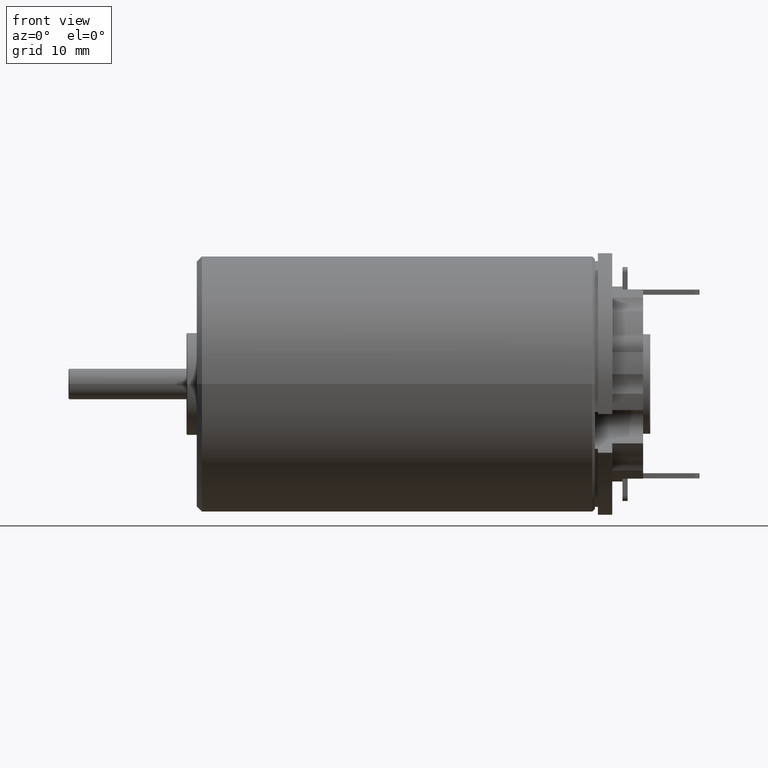
[diagram: clean part render]
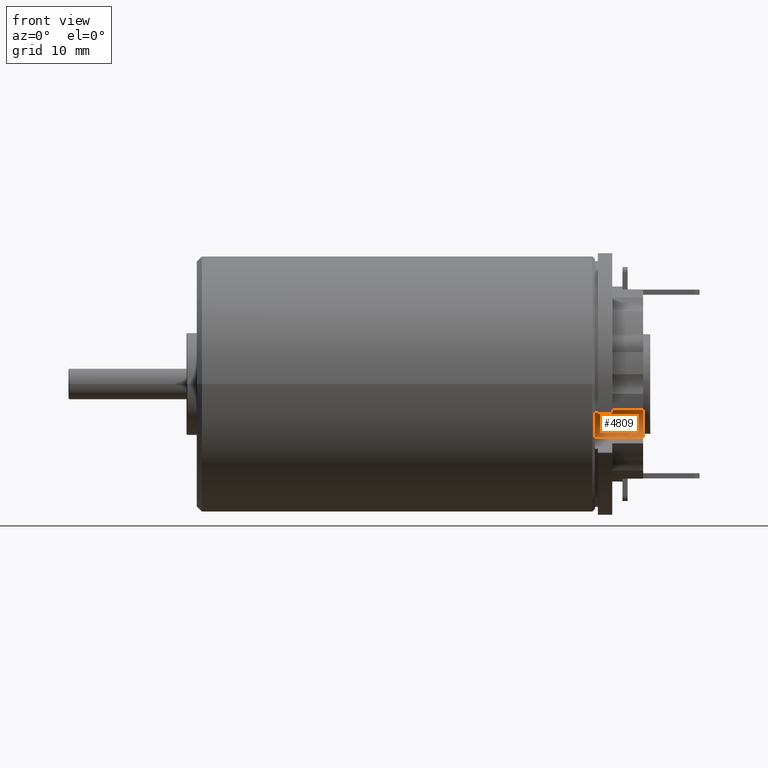
[diagram: same view with one face highlighted and labeled with its STEP entity id]
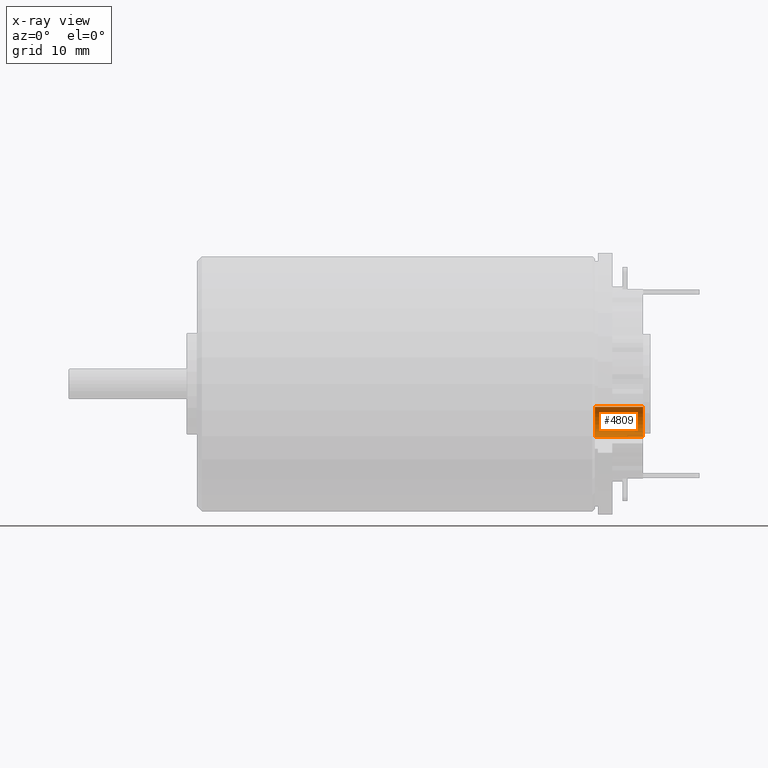
[diagram: x-ray of the same camera — body ghosted, the highlighted face saturated]
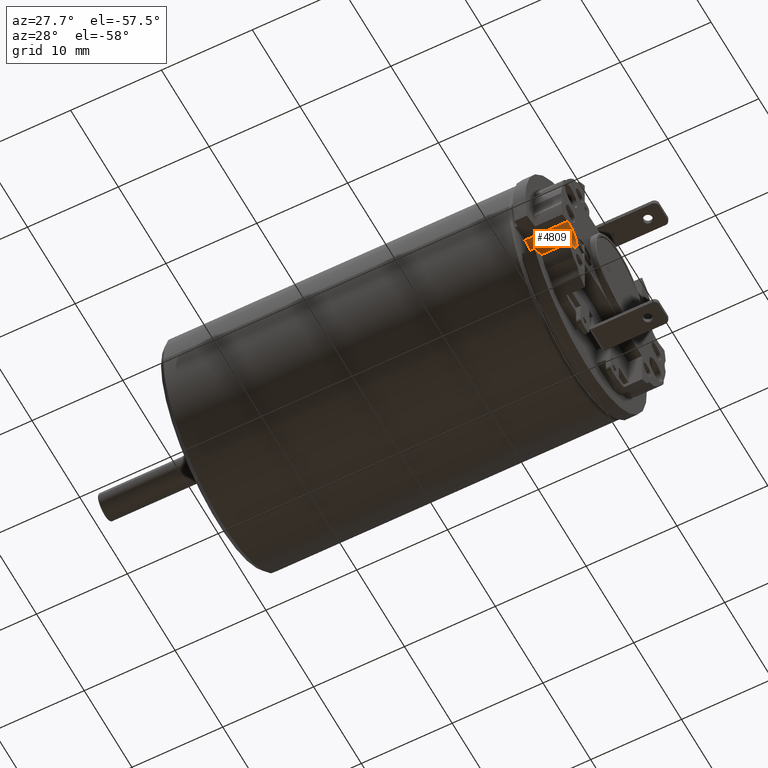
[diagram: same view with one face highlighted and labeled with its STEP entity id]
A machine part, front view. The second image highlights one B-rep face of the part: STEP entity #4809.
The next image is the same camera in x-ray: the body ghosted, the highlighted face saturated — about 0% of this face is hidden behind the body in this view.
A second angle (auxiliary view) of the same face is appended — the face is thin or edge-on in the first view.
In plain terms, the highlighted cylindrical surface (edge-blend (fillet) strip) has radius 1.6 mm, axis along (1, 0, 0).
Its self-contained STEP definition (entity closure, byte-faithful):
#62=CARTESIAN_POINT('',(3.88E1,-9.238795325113E0,-3.826834323651E0));
#63=DIRECTION('',(1.E0,0.E0,0.E0));
#64=DIRECTION('',(0.E0,5.255755933366E-1,-8.507469046014E-1));
#65=AXIS2_PLACEMENT_3D('',#62,#63,#64);
#273=DIRECTION('',(-1.E0,0.E0,0.E0));
#274=VECTOR('',#273,4.7E0);
#275=CARTESIAN_POINT('',(4.35E1,-9.606684667901E0,-2.269703169424E0));
#276=LINE('',#275,#274);
#496=CARTESIAN_POINT('',(4.35E1,-9.238795325113E0,-3.826834323651E0));
#497=DIRECTION('',(1.E0,0.E0,0.E0));
#498=DIRECTION('',(0.E0,5.255755933366E-1,-8.507469046014E-1));
#499=AXIS2_PLACEMENT_3D('',#496,#497,#498);
#1148=DIRECTION('',(-1.E0,0.E0,0.E0));
#1149=VECTOR('',#1148,4.7E0);
#1150=CARTESIAN_POINT('',(4.35E1,-8.397874375774E0,-5.188029371013E0));
#1151=LINE('',#1150,#1149);
#3007=CARTESIAN_POINT('',(3.88E1,-8.397874375774E0,-5.188029371013E0));
#3008=CARTESIAN_POINT('',(3.88E1,-9.606684667901E0,-2.269703169424E0));
#3009=VERTEX_POINT('',#3007);
#3010=VERTEX_POINT('',#3008);
#3055=CARTESIAN_POINT('',(4.35E1,-8.397874375774E0,-5.188029371013E0));
#3056=CARTESIAN_POINT('',(4.35E1,-9.606684667901E0,-2.269703169424E0));
#3057=VERTEX_POINT('',#3055);
#3058=VERTEX_POINT('',#3056);
#4797=CARTESIAN_POINT('',(4.35E1,-9.238795325113E0,-3.826834323651E0));
#4798=DIRECTION('',(1.E0,0.E0,0.E0));
#4799=DIRECTION('',(0.E0,0.E0,-1.E0));
#4800=AXIS2_PLACEMENT_3D('',#4797,#4798,#4799);
#4801=CYLINDRICAL_SURFACE('',#4800,1.6E0);
#4802=ORIENTED_EDGE('',*,*,#3843,.F.);
#4804=ORIENTED_EDGE('',*,*,#4803,.T.);
#4805=ORIENTED_EDGE('',*,*,#3418,.T.);
#4806=ORIENTED_EDGE('',*,*,#3574,.F.);
#4807=EDGE_LOOP('',(#4802,#4804,#4805,#4806));
#4808=FACE_OUTER_BOUND('',#4807,.F.);
#4809=ADVANCED_FACE('',(#4808),#4801,.F.);
#66=CIRCLE('',#65,1.6E0);
#500=CIRCLE('',#499,1.6E0);
#3418=EDGE_CURVE('',#3009,#3010,#66,.T.);
#3574=EDGE_CURVE('',#3058,#3010,#276,.T.);
#3843=EDGE_CURVE('',#3057,#3058,#500,.T.);
#4803=EDGE_CURVE('',#3057,#3009,#1151,.T.);